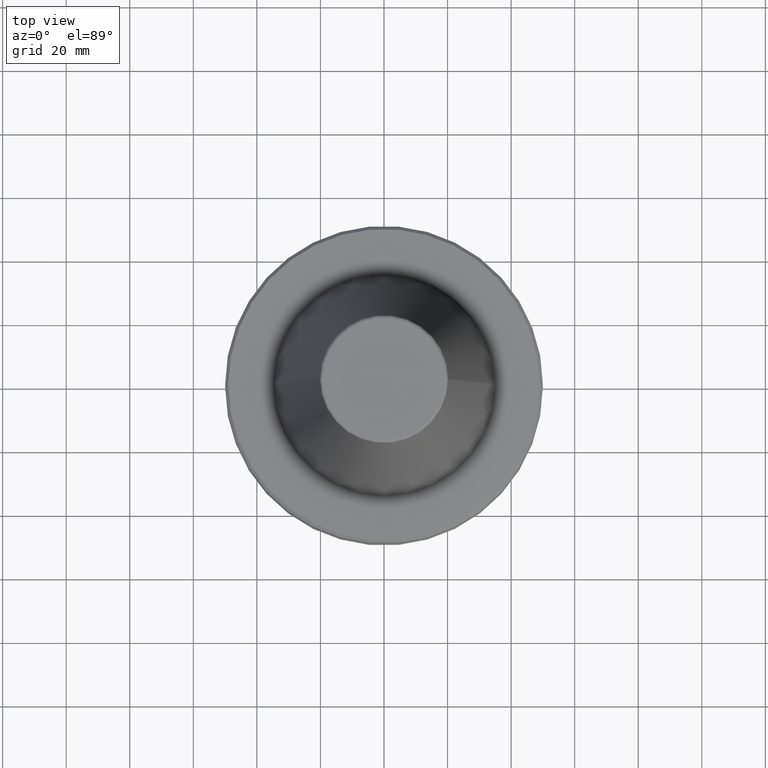
[diagram: clean part render]
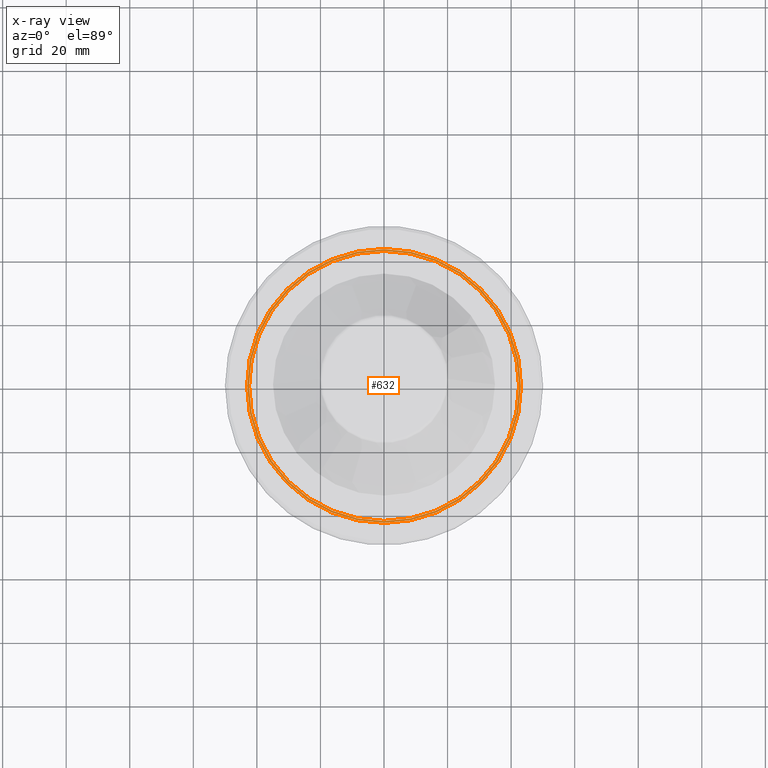
[diagram: x-ray — body ghosted, one internal face saturated and labeled with its STEP entity id]
A machine part, top view, then the same camera in x-ray: the body is ghosted and one INTERNAL B-rep face — a face not visible from any outside direction — is saturated and labeled: STEP entity #632.
In plain terms, the highlighted planar face has unit normal (0, 0, -1).
Its self-contained STEP definition (entity closure, byte-faithful):
#47 = VERTEX_POINT ( 'NONE', #248 ) ;
#52 = EDGE_CURVE ( 'NONE', #47, #209, #595, .T. ) ;
#87 = AXIS2_PLACEMENT_3D ( 'NONE', #374, #776, #873 ) ;
#90 = EDGE_CURVE ( 'NONE', #324, #865, #172, .T. ) ;
#132 = EDGE_LOOP ( 'NONE', ( #406, #721 ) ) ;
#172 = CIRCLE ( 'NONE', #87, 42.49999999999931800 ) ;
#182 = CARTESIAN_POINT ( 'NONE',  ( 43.07217782648920200, 5.699027233244145800E-015, -26.70000000000073800 ) ) ;
#197 = DIRECTION ( 'NONE',  ( -0.0000000000000000000, -0.0000000000000000000, 1.000000000000000000 ) ) ;
#209 = VERTEX_POINT ( 'NONE', #182 ) ;
#210 = DIRECTION ( 'NONE',  ( 1.000000000000000000, 0.0000000000000000000, 0.0000000000000000000 ) ) ;
#213 = FACE_BOUND ( 'NONE', #132, .T. ) ;
#221 = CARTESIAN_POINT ( 'NONE',  ( 42.49999999999931800, 0.0000000000000000000, -26.70000000000073800 ) ) ;
#248 = CARTESIAN_POINT ( 'NONE',  ( -43.07217782648920200, 0.0000000000000000000, -26.70000000000073800 ) ) ;
#283 = DIRECTION ( 'NONE',  ( -1.000000000000000000, 0.0000000000000000000, -0.0000000000000000000 ) ) ;
#304 = CARTESIAN_POINT ( 'NONE',  ( 0.0000000000000000000, 0.0000000000000000000, -26.70000000000073800 ) ) ;
#305 = DIRECTION ( 'NONE',  ( 1.000000000000000000, 0.0000000000000000000, 0.0000000000000000000 ) ) ;
#324 = VERTEX_POINT ( 'NONE', #690 ) ;
#374 = CARTESIAN_POINT ( 'NONE',  ( 0.0000000000000000000, 0.0000000000000000000, -26.70000000000073800 ) ) ;
#382 = FACE_OUTER_BOUND ( 'NONE', #906, .T. ) ;
#406 = ORIENTED_EDGE ( 'NONE', *, *, #625, .F. ) ;
#557 = DIRECTION ( 'NONE',  ( 0.0000000000000000000, 0.0000000000000000000, -1.000000000000000000 ) ) ;
#572 = ORIENTED_EDGE ( 'NONE', *, *, #856, .T. ) ;
#594 = AXIS2_PLACEMENT_3D ( 'NONE', #838, #850, #210 ) ;
#595 = CIRCLE ( 'NONE', #643, 43.07217782648920200 ) ;
#602 = CARTESIAN_POINT ( 'NONE',  ( 0.0000000000000000000, 0.0000000000000000000, -26.70000000000073800 ) ) ;
#625 = EDGE_CURVE ( 'NONE', #865, #324, #812, .T. ) ;
#632 = ADVANCED_FACE ( 'NONE', ( #213, #382 ), #760, .F. ) ;
#643 = AXIS2_PLACEMENT_3D ( 'NONE', #304, #730, #305 ) ;
#661 = AXIS2_PLACEMENT_3D ( 'NONE', #842, #557, #283 ) ;
#690 = CARTESIAN_POINT ( 'NONE',  ( -42.49999999999931800, 5.204748896376167300E-015, -26.70000000000073800 ) ) ;
#721 = ORIENTED_EDGE ( 'NONE', *, *, #90, .F. ) ;
#730 = DIRECTION ( 'NONE',  ( -0.0000000000000000000, -0.0000000000000000000, 1.000000000000000000 ) ) ;
#760 = PLANE ( 'NONE',  #661 ) ;
#776 = DIRECTION ( 'NONE',  ( -0.0000000000000000000, -0.0000000000000000000, 1.000000000000000000 ) ) ;
#802 = AXIS2_PLACEMENT_3D ( 'NONE', #602, #197, #833 ) ;
#812 = CIRCLE ( 'NONE', #802, 42.49999999999931800 ) ;
#821 = CIRCLE ( 'NONE', #594, 43.07217782648920200 ) ;
#833 = DIRECTION ( 'NONE',  ( 1.000000000000000000, 0.0000000000000000000, 0.0000000000000000000 ) ) ;
#838 = CARTESIAN_POINT ( 'NONE',  ( 0.0000000000000000000, 0.0000000000000000000, -26.70000000000073800 ) ) ;
#842 = CARTESIAN_POINT ( 'NONE',  ( 0.0000000000000000000, 43.07217782648920200, -26.70000000000072400 ) ) ;
#850 = DIRECTION ( 'NONE',  ( -0.0000000000000000000, -0.0000000000000000000, 1.000000000000000000 ) ) ;
#856 = EDGE_CURVE ( 'NONE', #209, #47, #821, .T. ) ;
#865 = VERTEX_POINT ( 'NONE', #221 ) ;
#873 = DIRECTION ( 'NONE',  ( 1.000000000000000000, 0.0000000000000000000, 0.0000000000000000000 ) ) ;
#906 = EDGE_LOOP ( 'NONE', ( #986, #572 ) ) ;
#986 = ORIENTED_EDGE ( 'NONE', *, *, #52, .T. ) ;